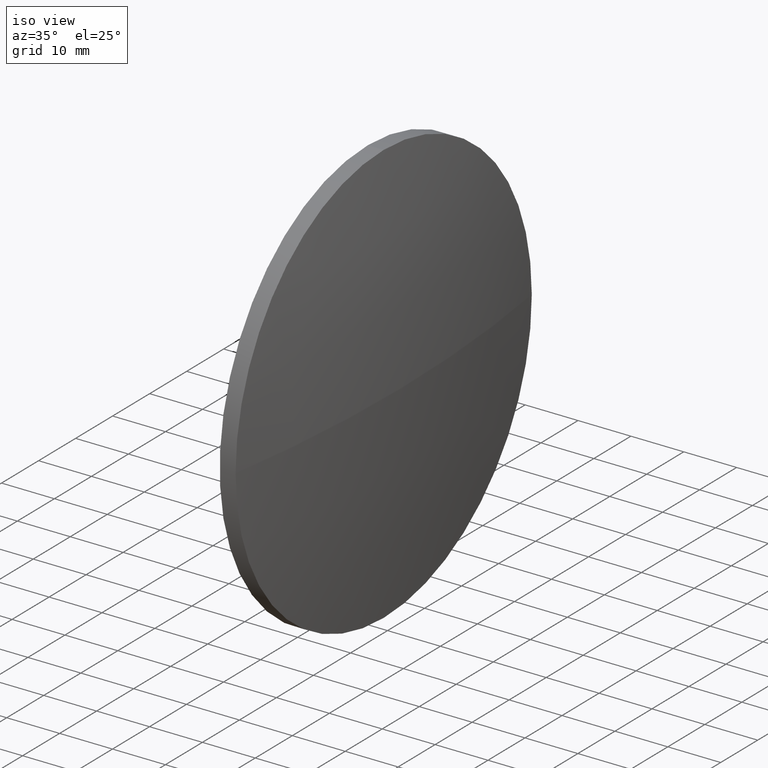
[diagram: clean part render]
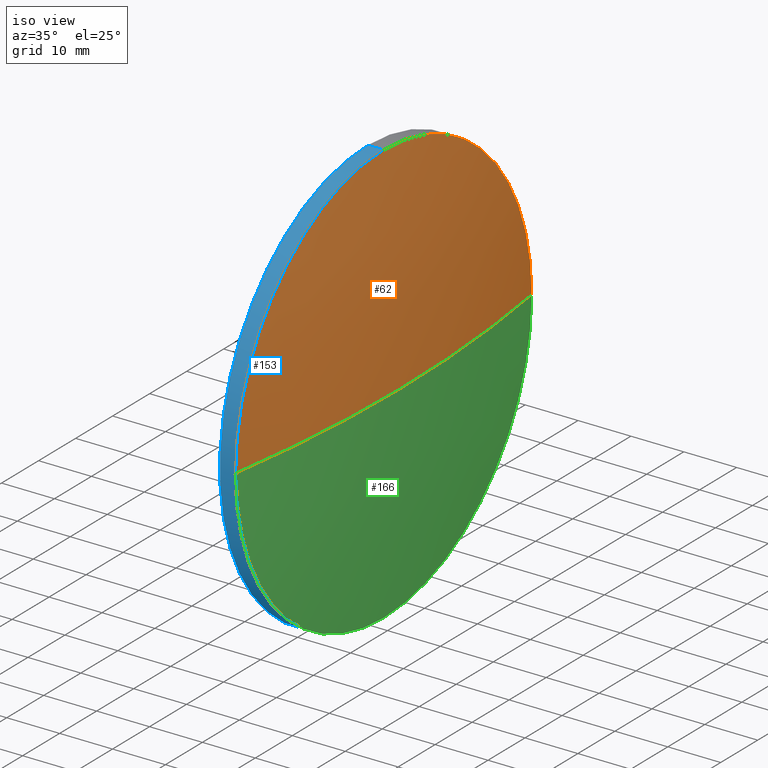
[diagram: same view with three faces highlighted in distinct colors, each labeled with its STEP entity id]
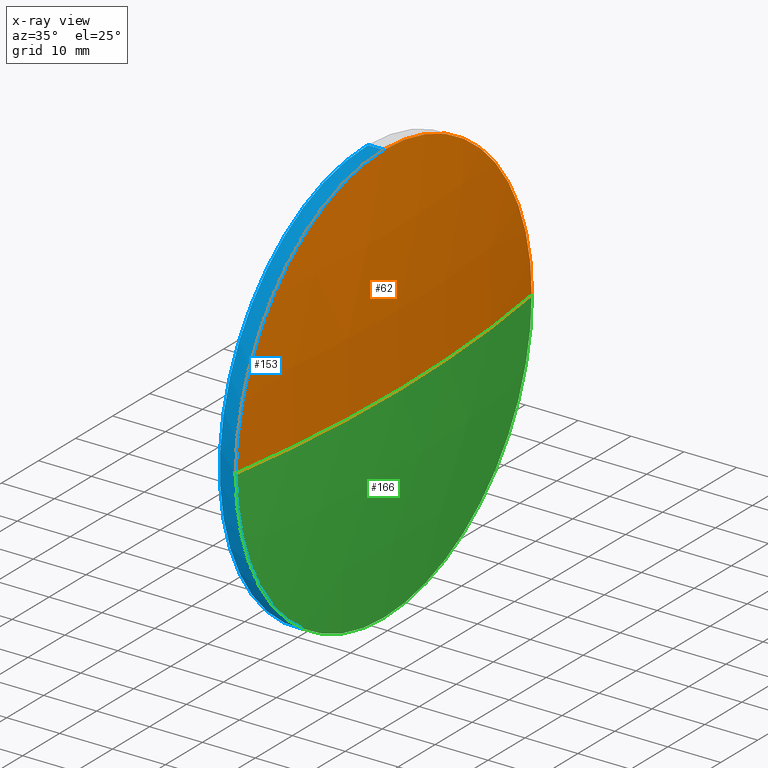
[diagram: x-ray of the same camera — body ghosted, the three highlighted faces saturated]
A machine part, iso view with three faces highlighted in distinct colors.
The next image is the same camera in x-ray (body ghosted, the three faces saturated) — at least one of them is partly hidden behind the body in this view.
Their STEP definitions:

[orange] entity #62 — the highlighted spherical surface has radius 257.97 mm.
#1 = AXIS2_PLACEMENT_3D ( 'NONE', #184, #32, #147 ) ;
#2 = DIRECTION ( 'NONE',  ( -1.000000000000000000, -0.0000000000000000000, -0.0000000000000000000 ) ) ;
#5 = CARTESIAN_POINT ( 'NONE',  ( 228.9490942240209100, 130.4671098528244200, 0.0000000000000000000 ) ) ;
#10 = FACE_OUTER_BOUND ( 'NONE', #152, .T. ) ;
#11 = VERTEX_POINT ( 'NONE', #104 ) ;
#15 = DIRECTION ( 'NONE',  ( -0.0000000000000000000, 0.0000000000000000000, 1.000000000000000000 ) ) ;
#21 = EDGE_CURVE ( 'NONE', #65, #124, #161, .T. ) ;
#22 = CIRCLE ( 'NONE', #89, 257.9702564102559600 ) ;
#23 = AXIS2_PLACEMENT_3D ( 'NONE', #5, #2, #98 ) ;
#29 = DIRECTION ( 'NONE',  ( -1.000000000000000000, -0.0000000000000000000, -0.0000000000000000000 ) ) ;
#31 = CARTESIAN_POINT ( 'NONE',  ( 228.9490942240209100, 170.4671098528244500, 0.0000000000000000000 ) ) ;
#32 = DIRECTION ( 'NONE',  ( -0.0000000000000000000, 0.0000000000000000000, -1.000000000000000000 ) ) ;
#33 = VERTEX_POINT ( 'NONE', #173 ) ;
#35 = ORIENTED_EDGE ( 'NONE', *, *, #158, .F. ) ;
#38 = CIRCLE ( 'NONE', #96, 40.00000000000000700 ) ;
#46 = EDGE_CURVE ( 'NONE', #33, #124, #157, .T. ) ;
#49 = ORIENTED_EDGE ( 'NONE', *, *, #46, .T. ) ;
#57 = CARTESIAN_POINT ( 'NONE',  ( 228.9490942240209100, 130.4671098528244200, 40.00000000000000700 ) ) ;
#60 = DIRECTION ( 'NONE',  ( 0.0000000000000000000, 0.0000000000000000000, 1.000000000000000000 ) ) ;
#62 = ADVANCED_FACE ( 'NONE', ( #10 ), #81, .T. ) ;
#65 = VERTEX_POINT ( 'NONE', #57 ) ;
#69 = CARTESIAN_POINT ( 'NONE',  ( -25.90116218623498400, 130.4671098528244200, 0.0000000000000000000 ) ) ;
#72 = DIRECTION ( 'NONE',  ( 0.0000000000000000000, 1.224646799147353200E-016, -1.000000000000000000 ) ) ;
#73 = CARTESIAN_POINT ( 'NONE',  ( 228.9490942240209100, 130.4671098528244200, 0.0000000000000000000 ) ) ;
#75 = EDGE_CURVE ( 'NONE', #11, #65, #38, .T. ) ;
#81 = SPHERICAL_SURFACE ( 'NONE', #1, 257.9702564102559000 ) ;
#89 = AXIS2_PLACEMENT_3D ( 'NONE', #69, #72, #143 ) ;
#94 = AXIS2_PLACEMENT_3D ( 'NONE', #122, #15, #120 ) ;
#96 = AXIS2_PLACEMENT_3D ( 'NONE', #73, #29, #60 ) ;
#98 = DIRECTION ( 'NONE',  ( 0.0000000000000000000, 0.0000000000000000000, 1.000000000000000000 ) ) ;
#104 = CARTESIAN_POINT ( 'NONE',  ( 228.9490942240209100, 90.46710985282437900, -4.898587196589416200E-015 ) ) ;
#120 = DIRECTION ( 'NONE',  ( 1.000000000000000000, 0.0000000000000000000, 0.0000000000000000000 ) ) ;
#122 = CARTESIAN_POINT ( 'NONE',  ( -25.90116218623498400, 130.4671098528244200, 0.0000000000000000000 ) ) ;
#123 = ORIENTED_EDGE ( 'NONE', *, *, #75, .F. ) ;
#124 = VERTEX_POINT ( 'NONE', #31 ) ;
#143 = DIRECTION ( 'NONE',  ( 0.0000000000000000000, 1.000000000000000000, 1.224646799147353000E-016 ) ) ;
#147 = DIRECTION ( 'NONE',  ( 0.0000000000000000000, 1.000000000000000000, 0.0000000000000000000 ) ) ;
#152 = EDGE_LOOP ( 'NONE', ( #35, #49, #186, #123 ) ) ;
#157 = CIRCLE ( 'NONE', #94, 257.9702564102559000 ) ;
#158 = EDGE_CURVE ( 'NONE', #33, #11, #22, .T. ) ;
#161 = CIRCLE ( 'NONE', #23, 40.00000000000000700 ) ;
#173 = CARTESIAN_POINT ( 'NONE',  ( 232.0690942240209200, 130.4671098528244500, 0.0000000000000000000 ) ) ;
#184 = CARTESIAN_POINT ( 'NONE',  ( -25.90116218623498400, 130.4671098528244200, 0.0000000000000000000 ) ) ;
#186 = ORIENTED_EDGE ( 'NONE', *, *, #21, .F. ) ;

[blue] entity #153 — the highlighted cylindrical surface (partial cylindrical patch) has radius 40 mm, axis along (-1, -0, -0).
#4 = CARTESIAN_POINT ( 'NONE',  ( 217.9945825323866300, 130.4671098528244200, -40.00000000000000700 ) ) ;
#7 = ORIENTED_EDGE ( 'NONE', *, *, #75, .T. ) ;
#11 = VERTEX_POINT ( 'NONE', #104 ) ;
#12 = EDGE_CURVE ( 'NONE', #65, #142, #182, .T. ) ;
#18 = DIRECTION ( 'NONE',  ( -1.000000000000000000, -0.0000000000000000000, -0.0000000000000000000 ) ) ;
#19 = DIRECTION ( 'NONE',  ( -1.000000000000000000, -0.0000000000000000000, -0.0000000000000000000 ) ) ;
#29 = DIRECTION ( 'NONE',  ( -1.000000000000000000, -0.0000000000000000000, -0.0000000000000000000 ) ) ;
#34 = EDGE_CURVE ( 'NONE', #167, #11, #82, .T. ) ;
#38 = CIRCLE ( 'NONE', #96, 40.00000000000000700 ) ;
#39 = DIRECTION ( 'NONE',  ( 0.0000000000000000000, 0.0000000000000000000, 1.000000000000000000 ) ) ;
#45 = VECTOR ( 'NONE', #19, 1000.000000000000000 ) ;
#50 = AXIS2_PLACEMENT_3D ( 'NONE', #74, #84, #177 ) ;
#57 = CARTESIAN_POINT ( 'NONE',  ( 228.9490942240209100, 130.4671098528244200, 40.00000000000000700 ) ) ;
#58 = CARTESIAN_POINT ( 'NONE',  ( 225.9490942240209100, 130.4671098528244200, 0.0000000000000000000 ) ) ;
#60 = DIRECTION ( 'NONE',  ( 0.0000000000000000000, 0.0000000000000000000, 1.000000000000000000 ) ) ;
#65 = VERTEX_POINT ( 'NONE', #57 ) ;
#73 = CARTESIAN_POINT ( 'NONE',  ( 228.9490942240209100, 130.4671098528244200, 0.0000000000000000000 ) ) ;
#74 = CARTESIAN_POINT ( 'NONE',  ( 228.9490942240209100, 130.4671098528244200, 0.0000000000000000000 ) ) ;
#75 = EDGE_CURVE ( 'NONE', #11, #65, #38, .T. ) ;
#76 = DIRECTION ( 'NONE',  ( -1.000000000000000000, -0.0000000000000000000, -0.0000000000000000000 ) ) ;
#78 = ORIENTED_EDGE ( 'NONE', *, *, #12, .T. ) ;
#82 = CIRCLE ( 'NONE', #50, 40.00000000000000700 ) ;
#84 = DIRECTION ( 'NONE',  ( -1.000000000000000000, -0.0000000000000000000, -0.0000000000000000000 ) ) ;
#96 = AXIS2_PLACEMENT_3D ( 'NONE', #73, #29, #60 ) ;
#97 = VECTOR ( 'NONE', #18, 1000.000000000000000 ) ;
#104 = CARTESIAN_POINT ( 'NONE',  ( 228.9490942240209100, 90.46710985282437900, -4.898587196589416200E-015 ) ) ;
#105 = EDGE_CURVE ( 'NONE', #179, #142, #154, .T. ) ;
#106 = LINE ( 'NONE', #4, #97 ) ;
#108 = EDGE_CURVE ( 'NONE', #167, #179, #106, .T. ) ;
#110 = ORIENTED_EDGE ( 'NONE', *, *, #105, .F. ) ;
#113 = CYLINDRICAL_SURFACE ( 'NONE', #148, 40.00000000000000700 ) ;
#121 = CARTESIAN_POINT ( 'NONE',  ( 225.9490942240209100, 130.4671098528244200, 40.00000000000000700 ) ) ;
#129 = ORIENTED_EDGE ( 'NONE', *, *, #34, .T. ) ;
#132 = DIRECTION ( 'NONE',  ( -1.000000000000000000, -0.0000000000000000000, -0.0000000000000000000 ) ) ;
#142 = VERTEX_POINT ( 'NONE', #121 ) ;
#148 = AXIS2_PLACEMENT_3D ( 'NONE', #164, #76, #39 ) ;
#153 = ADVANCED_FACE ( 'NONE', ( #168 ), #113, .T. ) ;
#154 = CIRCLE ( 'NONE', #175, 40.00000000000000700 ) ;
#162 = CARTESIAN_POINT ( 'NONE',  ( 217.9945825323866300, 130.4671098528244200, 40.00000000000000700 ) ) ;
#163 = DIRECTION ( 'NONE',  ( 0.0000000000000000000, 0.0000000000000000000, 1.000000000000000000 ) ) ;
#164 = CARTESIAN_POINT ( 'NONE',  ( 217.9945825323866300, 130.4671098528244200, 0.0000000000000000000 ) ) ;
#167 = VERTEX_POINT ( 'NONE', #172 ) ;
#168 = FACE_OUTER_BOUND ( 'NONE', #169, .T. ) ;
#169 = EDGE_LOOP ( 'NONE', ( #170, #129, #7, #78, #110 ) ) ;
#170 = ORIENTED_EDGE ( 'NONE', *, *, #108, .F. ) ;
#171 = CARTESIAN_POINT ( 'NONE',  ( 225.9490942240209100, 130.4671098528244200, -40.00000000000000700 ) ) ;
#172 = CARTESIAN_POINT ( 'NONE',  ( 228.9490942240209100, 130.4671098528244200, -40.00000000000000700 ) ) ;
#175 = AXIS2_PLACEMENT_3D ( 'NONE', #58, #132, #163 ) ;
#177 = DIRECTION ( 'NONE',  ( 0.0000000000000000000, 0.0000000000000000000, 1.000000000000000000 ) ) ;
#179 = VERTEX_POINT ( 'NONE', #171 ) ;
#182 = LINE ( 'NONE', #162, #45 ) ;

[green] entity #166 — the highlighted spherical surface has radius 257.97 mm.
#11 = VERTEX_POINT ( 'NONE', #104 ) ;
#15 = DIRECTION ( 'NONE',  ( -0.0000000000000000000, 0.0000000000000000000, 1.000000000000000000 ) ) ;
#20 = ORIENTED_EDGE ( 'NONE', *, *, #158, .T. ) ;
#22 = CIRCLE ( 'NONE', #89, 257.9702564102559600 ) ;
#27 = AXIS2_PLACEMENT_3D ( 'NONE', #77, #127, #159 ) ;
#31 = CARTESIAN_POINT ( 'NONE',  ( 228.9490942240209100, 170.4671098528244500, 0.0000000000000000000 ) ) ;
#33 = VERTEX_POINT ( 'NONE', #173 ) ;
#34 = EDGE_CURVE ( 'NONE', #167, #11, #82, .T. ) ;
#46 = EDGE_CURVE ( 'NONE', #33, #124, #157, .T. ) ;
#48 = FACE_OUTER_BOUND ( 'NONE', #134, .T. ) ;
#50 = AXIS2_PLACEMENT_3D ( 'NONE', #74, #84, #177 ) ;
#69 = CARTESIAN_POINT ( 'NONE',  ( -25.90116218623498400, 130.4671098528244200, 0.0000000000000000000 ) ) ;
#71 = CARTESIAN_POINT ( 'NONE',  ( -25.90116218623498400, 130.4671098528244200, 0.0000000000000000000 ) ) ;
#72 = DIRECTION ( 'NONE',  ( 0.0000000000000000000, 1.224646799147353200E-016, -1.000000000000000000 ) ) ;
#74 = CARTESIAN_POINT ( 'NONE',  ( 228.9490942240209100, 130.4671098528244200, 0.0000000000000000000 ) ) ;
#77 = CARTESIAN_POINT ( 'NONE',  ( 228.9490942240209100, 130.4671098528244200, 0.0000000000000000000 ) ) ;
#79 = CIRCLE ( 'NONE', #27, 40.00000000000000700 ) ;
#82 = CIRCLE ( 'NONE', #50, 40.00000000000000700 ) ;
#83 = EDGE_CURVE ( 'NONE', #124, #167, #79, .T. ) ;
#84 = DIRECTION ( 'NONE',  ( -1.000000000000000000, -0.0000000000000000000, -0.0000000000000000000 ) ) ;
#85 = SPHERICAL_SURFACE ( 'NONE', #126, 257.9702564102559000 ) ;
#88 = DIRECTION ( 'NONE',  ( -0.0000000000000000000, 0.0000000000000000000, -1.000000000000000000 ) ) ;
#89 = AXIS2_PLACEMENT_3D ( 'NONE', #69, #72, #143 ) ;
#93 = ORIENTED_EDGE ( 'NONE', *, *, #34, .F. ) ;
#94 = AXIS2_PLACEMENT_3D ( 'NONE', #122, #15, #120 ) ;
#101 = DIRECTION ( 'NONE',  ( 0.0000000000000000000, 1.000000000000000000, 0.0000000000000000000 ) ) ;
#104 = CARTESIAN_POINT ( 'NONE',  ( 228.9490942240209100, 90.46710985282437900, -4.898587196589416200E-015 ) ) ;
#116 = ORIENTED_EDGE ( 'NONE', *, *, #83, .F. ) ;
#120 = DIRECTION ( 'NONE',  ( 1.000000000000000000, 0.0000000000000000000, 0.0000000000000000000 ) ) ;
#122 = CARTESIAN_POINT ( 'NONE',  ( -25.90116218623498400, 130.4671098528244200, 0.0000000000000000000 ) ) ;
#124 = VERTEX_POINT ( 'NONE', #31 ) ;
#125 = ORIENTED_EDGE ( 'NONE', *, *, #46, .F. ) ;
#126 = AXIS2_PLACEMENT_3D ( 'NONE', #71, #88, #101 ) ;
#127 = DIRECTION ( 'NONE',  ( -1.000000000000000000, -0.0000000000000000000, -0.0000000000000000000 ) ) ;
#134 = EDGE_LOOP ( 'NONE', ( #125, #20, #93, #116 ) ) ;
#143 = DIRECTION ( 'NONE',  ( 0.0000000000000000000, 1.000000000000000000, 1.224646799147353000E-016 ) ) ;
#157 = CIRCLE ( 'NONE', #94, 257.9702564102559000 ) ;
#158 = EDGE_CURVE ( 'NONE', #33, #11, #22, .T. ) ;
#159 = DIRECTION ( 'NONE',  ( 0.0000000000000000000, 0.0000000000000000000, 1.000000000000000000 ) ) ;
#166 = ADVANCED_FACE ( 'NONE', ( #48 ), #85, .T. ) ;
#167 = VERTEX_POINT ( 'NONE', #172 ) ;
#172 = CARTESIAN_POINT ( 'NONE',  ( 228.9490942240209100, 130.4671098528244200, -40.00000000000000700 ) ) ;
#173 = CARTESIAN_POINT ( 'NONE',  ( 232.0690942240209200, 130.4671098528244500, 0.0000000000000000000 ) ) ;
#177 = DIRECTION ( 'NONE',  ( 0.0000000000000000000, 0.0000000000000000000, 1.000000000000000000 ) ) ;